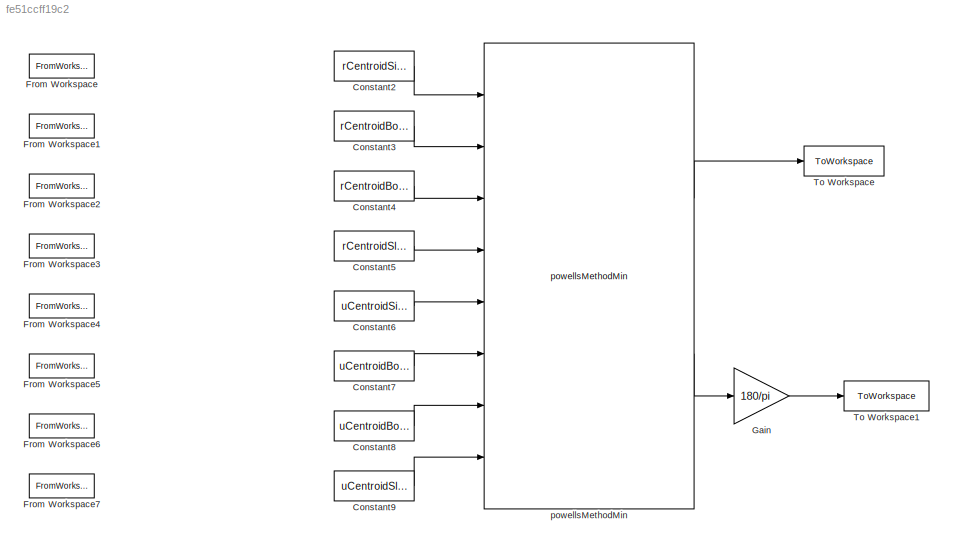
MODEL slx_fe51ccff19c2
KIND model
CONFIG AbsTol = auto
CONFIG EnableMultiTasking = on
CONFIG FixedStep = 0.5
CONFIG MaxStep = auto
CONFIG MinStep = auto
CONFIG RelTol = 1e-3
CONFIG SampleTimeConstraint = Unconstrained
CONFIG Solver = ode8
CONFIG SolverName = ode8
CONFIG StartTime = 0.0
CONFIG StopTime = 0
BLOCK [Constant] Constant2
  Value = rCentroidSide
BLOCK [Constant] Constant3
  Value = rCentroidBotA
BLOCK [Constant] Constant4
  Value = rCentroidBotB
BLOCK [Constant] Constant5
  Value = rCentroidSlant
BLOCK [Constant] Constant6
  Value = uCentroidSide
BLOCK [Constant] Constant7
  Value = uCentroidBotA
BLOCK [Constant] Constant8
  Value = uCentroidBotB
BLOCK [Constant] Constant9
  Value = uCentroidSlant
BLOCK [FromWorkspace] From Workspace
  Commented = on
  SampleTime = 0
  VariableName = rSide
  ZeroCross = on
BLOCK [FromWorkspace] From Workspace1
  Commented = on
  SampleTime = 0
  VariableName = rBotA
  ZeroCross = on
BLOCK [FromWorkspace] From Workspace2
  Commented = on
  SampleTime = 0
  VariableName = rBotB
  ZeroCross = on
BLOCK [FromWorkspace] From Workspace3
  Commented = on
  SampleTime = 0
  VariableName = rSlant
  ZeroCross = on
BLOCK [FromWorkspace] From Workspace4
  Commented = on
  SampleTime = 0
  VariableName = uSide
  ZeroCross = on
BLOCK [FromWorkspace] From Workspace5
  Commented = on
  SampleTime = 0
  VariableName = uBotA
  ZeroCross = on
BLOCK [FromWorkspace] From Workspace6
  Commented = on
  SampleTime = 0
  VariableName = uBotB
  ZeroCross = on
BLOCK [FromWorkspace] From Workspace7
  Commented = on
  SampleTime = 0
  VariableName = uSlant
  ZeroCross = on
BLOCK [Gain] Gain
  Gain = 180/pi
  OutDataTypeStr = Inherit: Inherit via internal rule
  ParamDataTypeStr = Inherit: Inherit via internal rule
  SaturateOnIntegerOverflow = off
BLOCK [ToWorkspace] To Workspace
  FixptAsFi = on
  MaxDataPoints = inf
  Ports = [1]
  SampleTime = -1
  Save2DSignal = 3-D array (concatenate along third dimension)
  SaveFormat = Timeseries
  VariableName = CoMPos_th
BLOCK [ToWorkspace] To Workspace1
  FixptAsFi = on
  MaxDataPoints = inf
  Ports = [1]
  SampleTime = -1
  Save2DSignal = 3-D array (concatenate along third dimension)
  SaveFormat = Timeseries
  VariableName = EulAng_th
BLOCK [Reference] powellsMethodMin  REF=powellsMethodMin_ul/powellsMethodMin
  Ports = [8, 2]
  SourceBlock = powellsMethodMin_ul/powellsMethodMin
LINE Constant2:1 -> powellsMethodMin:1
LINE Constant3:1 -> powellsMethodMin:2
LINE Constant4:1 -> powellsMethodMin:3
LINE Constant5:1 -> powellsMethodMin:4
LINE Constant6:1 -> powellsMethodMin:5
LINE Constant7:1 -> powellsMethodMin:6
LINE Constant8:1 -> powellsMethodMin:7
LINE Constant9:1 -> powellsMethodMin:8
LINE Gain:1 -> To Workspace1:1
LINE powellsMethodMin:1 -> To Workspace:1
LINE powellsMethodMin:2 -> Gain:1
